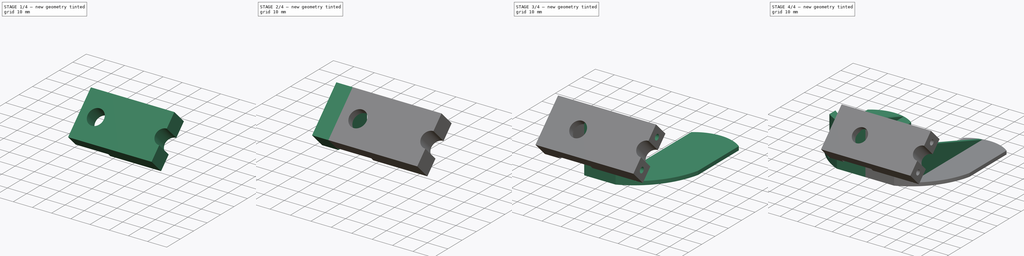
[diagram: build sequence overview — one tinted view per stage of 4, left to right]
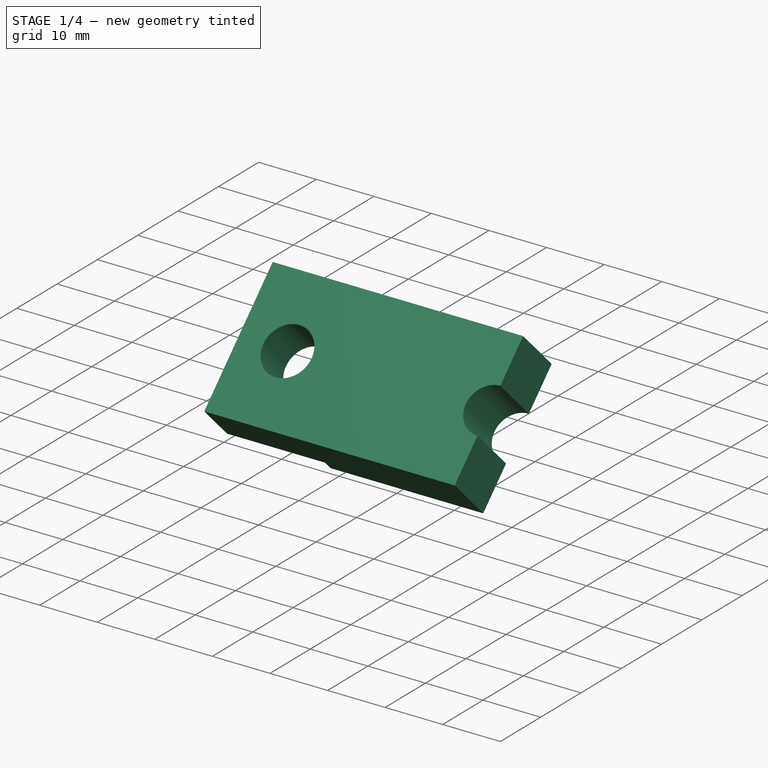
[diagram: stage 1 of 4 — iso view after this stage's code; geometry added in this stage tinted green]
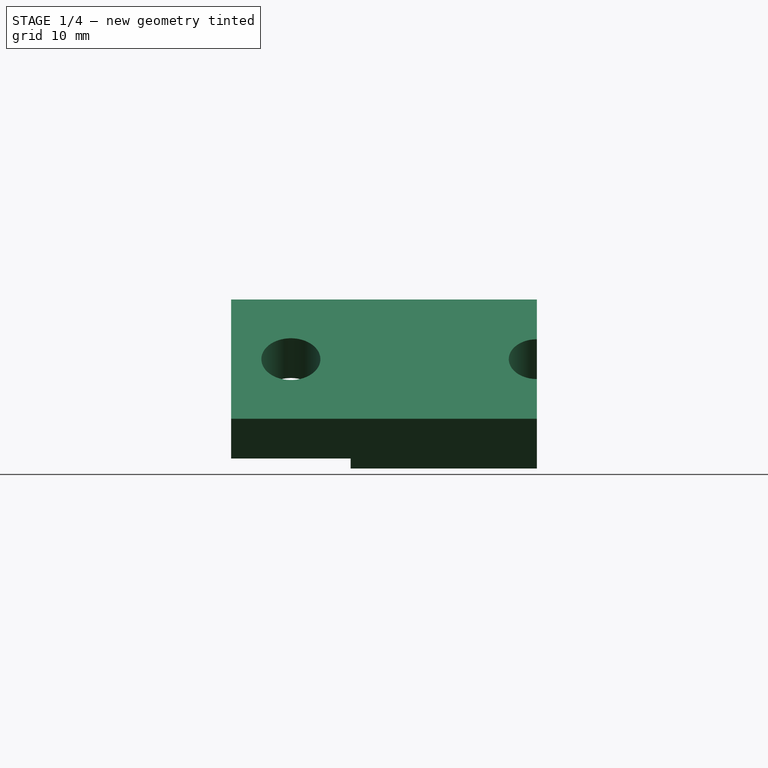
[diagram: stage 1 of 4 — front view after this stage's code; geometry added in this stage tinted green]
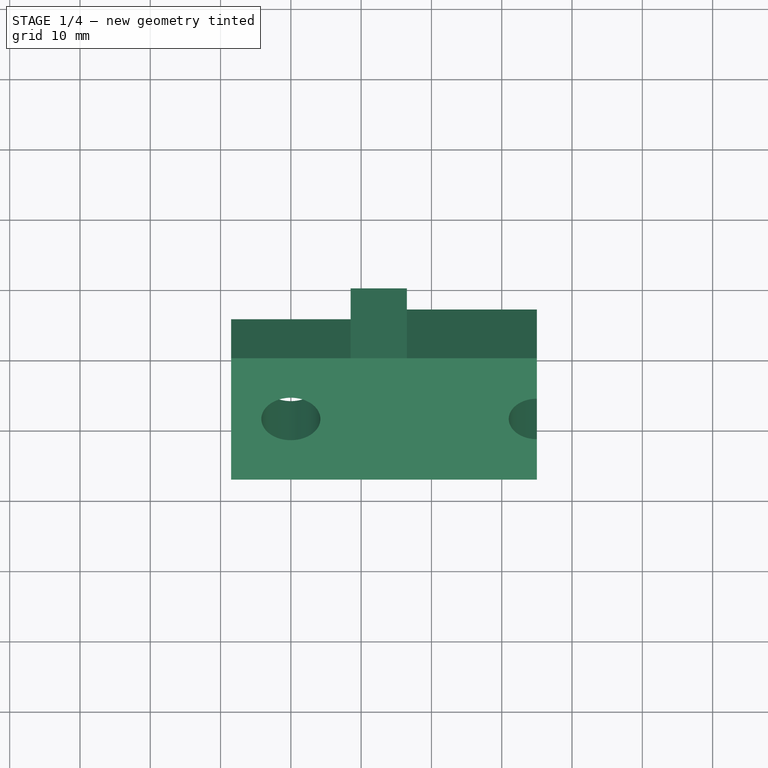
[diagram: stage 1 of 4 — top view after this stage's code; geometry added in this stage tinted green]
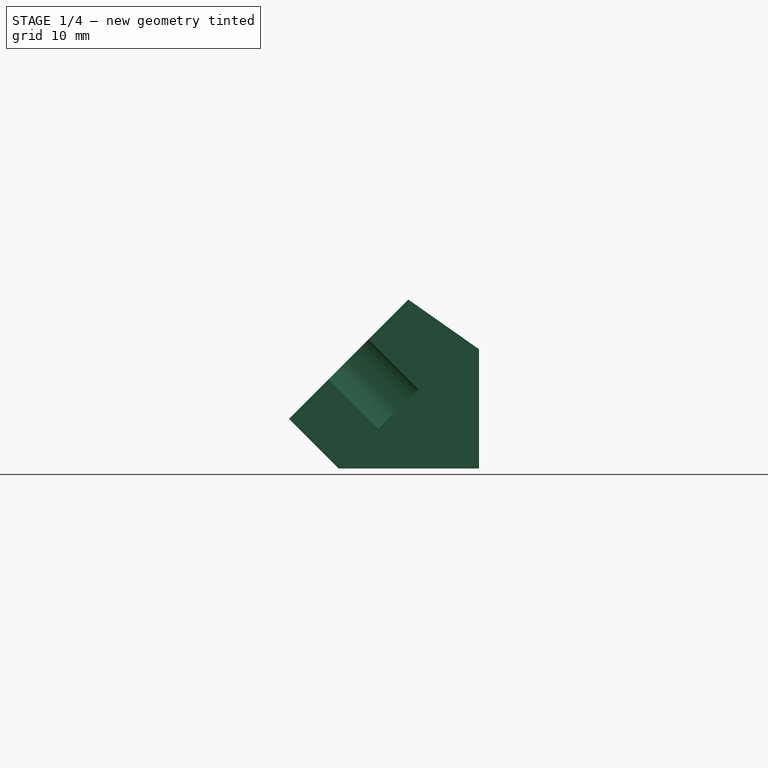
[diagram: stage 1 of 4 — right view after this stage's code; geometry added in this stage tinted green]
FCSTD DOCUMENT  (FreeCAD 0.19R24291 (Git))
Label: Ласты3
License: All rights reserved
LicenseURL: http://en.wikipedia.org/wiki/All_rights_reserved
objects: Sketcher::SketchObject×9, PartDesign::Pad×5, PartDesign::Pocket×5, PartDesign::Point×2, PartDesign::Mirrored×2, PartDesign::Body×2, PartDesign::Plane×1
note: 36 computed .brp shape members not serialized (recipe doc carries the construction recipe); baked Part::Feature solids carry a one-line shape summary decoded from their .brp

FEATURE [PartDesign::Body] Body
  Group = -> [Sketch,Pad,Sketch001,Pad001,DatumPlane,DatumPoint,Sketch002,DatumPoint001,Pad002,Sketch003,Pocket,Mirrored]
  Origin = -> Origin
  Tip = -> Mirrored
FEATURE [Sketcher::SketchObject] Sketch004
  AttachmentOffset = pos=(0,0,12.5) rot=(0,0,1;0rad)
  FullyConstrained = true
  MapMode = 5
  Placement = pos=(12.5,-2.8e-15,2.8e-15) rot=(0.57735,0.57735,0.57735;2.0944rad)
  Support = -> [YZ_Plane001]
  sketch-geometry (9):
    g0: LineSegment StartX=0 StartY=8 StartZ=0 EndX=-19.9706 EndY=8 EndZ=0
    g1: LineSegment StartX=-19.9706 StartY=8 StartZ=0 EndX=-27.0416 EndY=15.0711 EndZ=0
    g2: LineSegment StartX=-27.0416 StartY=15.0711 StartZ=0 EndX=-10.0711 EndY=32.0416 EndZ=0
    g3: LineSegment StartX=-10.0711 StartY=32.0416 StartZ=0 EndX=0 EndY=32.0416 EndZ=0
    g4: LineSegment StartX=0 StartY=32.0416 StartZ=0 EndX=0 EndY=8 EndZ=0
    g5: LineSegment StartX=-10.0711 StartY=32.0416 StartZ=0 EndX=-3 EndY=24.9706 EndZ=0
    g6: LineSegment StartX=-3 StartY=24.9706 StartZ=0 EndX=0 EndY=24.9706 EndZ=0
    g7: LineSegment StartX=-10.0711 StartY=32.0416 StartZ=0 EndX=0 EndY=24.9706 EndZ=0
    g8: LineSegment StartX=0 StartY=24.9706 StartZ=0 EndX=0 EndY=8 EndZ=0
  constraints (25):
    c: PointOnObject(g0,g-2)
    c: Horizontal(g0)
    c: Coincident(g1,g0)
    c: Distance(g-1,g0) = 8
    c: Angle(g0,g1) = 2.35619
    c: Distance(g1) = 10
    c: Coincident(g2,g1)
    c: Coincident(g3,g2)
    c: PointOnObject(g3,g-2)
    c: Horizontal(g3)
    c: Coincident(g4,g3)
    c: Coincident(g4,g0)
    c: Perpendicular(g2,g1)
    c: Distance(g2) = 24
    c: Coincident(g5,g2)
    c: Coincident(g6,g5)
    c: PointOnObject(g6,g4)
    c: Horizontal(g6)
    c: Perpendicular(g2,g5)
    c: Equal(g5,g1)
    c: Distance(g6) = 3
    c: Coincident(g7,g2)
    c: Coincident(g7,g6)
    c: Coincident(g8,g7)
    c: Coincident(g8,g0)
FEATURE [PartDesign::Pad] Pad003
  Direction = (1,1,1)
  Length = 8
  Length2 = 100
  Midplane = true
  Placement = pos=(0,0,0) rot=(0.57735,0.57735,0.57735;2.0944rad)
  Profile = -> Sketch004
  Type = 0
FEATURE [Sketcher::SketchObject] Sketch005
  ExternalGeometry = -> [Pad003]
  FullyConstrained = true
  MapMode = 5
  Placement = pos=(-1.52e-14,-21.0563,21.0563) rot=(0.357407,0.357407,-0.862856;1.71777rad)
  Support = -> [Pad003]
  sketch-geometry (13):
    g0: LineSegment StartX=-15.5355 StartY=8.5 StartZ=0 EndX=-15.5355 EndY=-8.5 EndZ=0
    g1: LineSegment StartX=-15.5355 StartY=-8.5 StartZ=0 EndX=8.46447 EndY=-8.5 EndZ=0
    g2: LineSegment StartX=8.46447 StartY=-8.5 StartZ=0 EndX=8.46447 EndY=8.5 EndZ=0
    g3: LineSegment StartX=8.46447 StartY=8.5 StartZ=0 EndX=-15.5355 EndY=8.5 EndZ=0
    g4: Circle CenterX=-3.53553 CenterY=0 CenterZ=0 NormalX=0 NormalY=0 NormalZ=1 AngleXU=0 Radius=4.2
    g5: LineSegment StartX=-15.5355 StartY=8.5 StartZ=0 EndX=-3.53553 EndY=0 EndZ=0
    g6: LineSegment StartX=-3.53553 StartY=0 StartZ=0 EndX=8.46447 EndY=-8.5 EndZ=0
    g7: LineSegment StartX=-15.5355 StartY=16.5 StartZ=0 EndX=8.46447 EndY=16.5 EndZ=0
    g8: LineSegment StartX=8.46447 StartY=16.5 StartZ=0 EndX=8.46447 EndY=35 EndZ=0
    g9: LineSegment StartX=8.46447 StartY=35 StartZ=0 EndX=0.464466 EndY=35 EndZ=0
    g10: LineSegment StartX=-15.5355 StartY=35 StartZ=0 EndX=-15.5355 EndY=16.5 EndZ=0
    g11: ArcOfCircle CenterX=-3.53553 CenterY=35 CenterZ=0 NormalX=0 NormalY=0 NormalZ=1 AngleXU=0 Radius=4 StartAngle=3.14159 EndAngle=6.28319
    g12: LineSegment StartX=-7.53553 StartY=35 StartZ=0 EndX=-15.5355 EndY=35 EndZ=0
  constraints (33):
    c: Coincident(g0,g-3)
    c: Vertical(g0)
    c: Distance(g0) = 17
    c: Coincident(g0,g1)
    c: Horizontal(g1)
    c: Coincident(g1,g2)
    c: Coincident(g2,g-4)
    c: Vertical(g2)
    c: Coincident(g2,g3)
    c: Coincident(g3,g0)
    c: PointOnObject(g4,g-1)
    c: Coincident(g5,g0)
    c: Coincident(g5,g4)
    c: Coincident(g6,g4)
    c: Coincident(g6,g1)
    c: Equal(g6,g5)
    c: Diameter(g4) = 8.4
    c: Coincident(g7,g8)
    c: Coincident(g8,g9)
    c: Coincident(g12,g10)
    c: Coincident(g10,g7)
    c: Horizontal(g9)
    c: Vertical(g8)
    c: Vertical(g10)
    c: Coincident(g7,g-3)
    c: Coincident(g7,g-4)
    c: PointOnObject(g11,g9)
    c: Coincident(g9,g11)
    c: Coincident(g12,g11)
    c: Tangent(g9,g12)
    c: Vertical(g4,g11)
    c: Diameter(g11) = 8
    c: Distance(g4,g11) = 35
FEATURE [PartDesign::Pad] Pad004
  BaseFeature = -> Pad003
  Direction = (1,1,1)
  Length = 10
  Length2 = 100
  Placement = pos=(0,0,0) rot=(0.57735,0.57735,0.57735;2.0944rad)
  Profile = -> Sketch005
  Reversed = true
  Type = 0
FEATURE [PartDesign::Pocket] Pocket001
  BaseFeature = -> Pad004
  Length = 2
  Length2 = 100
  Placement = pos=(0,0,0) rot=(0.57735,0.57735,0.57735;2.0944rad)
  Profile = -> Pad004 [Face11]
  Type = 0
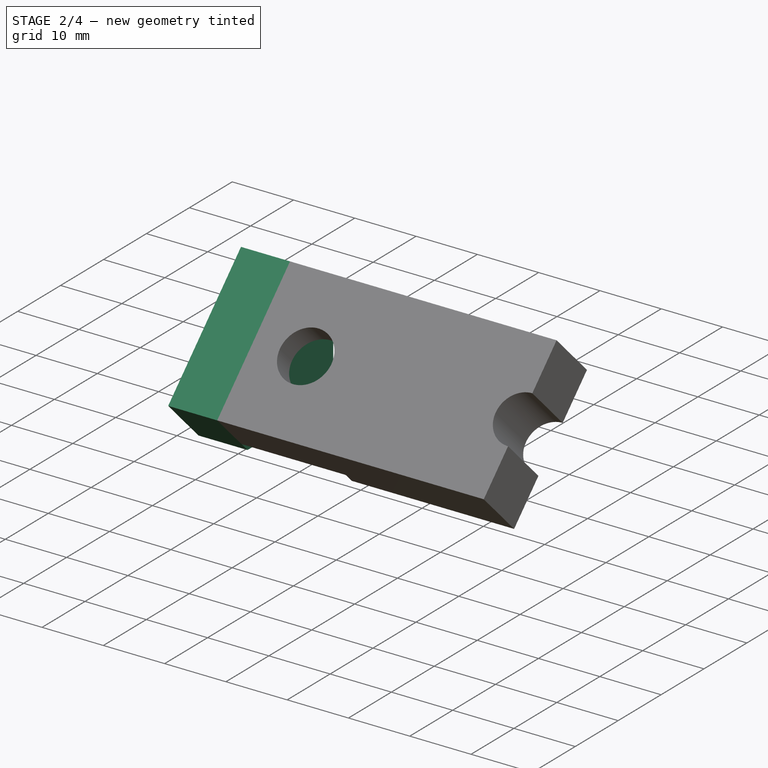
[diagram: stage 2 of 4 — iso view after this stage's code; geometry added in this stage tinted green]
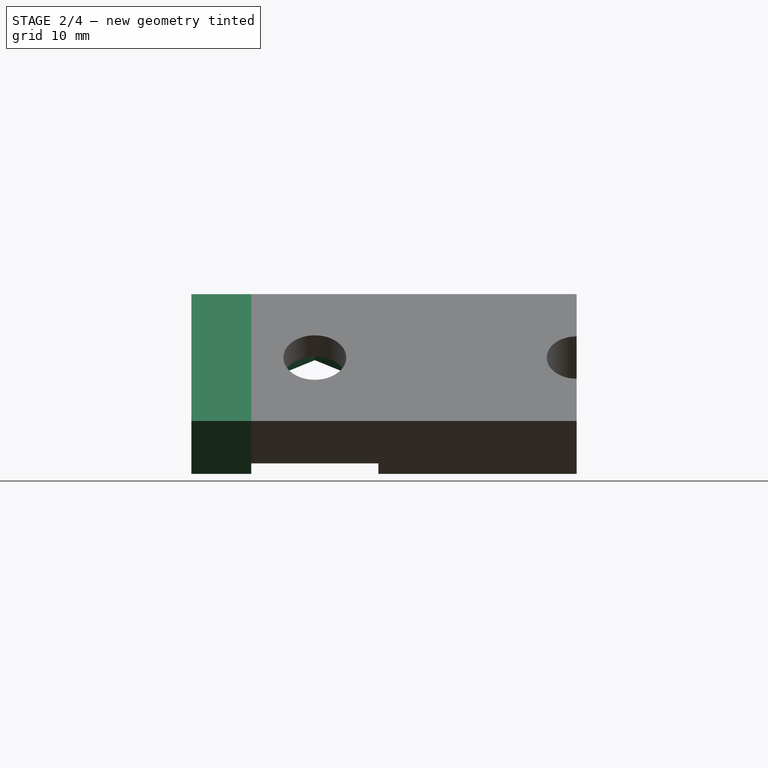
[diagram: stage 2 of 4 — front view after this stage's code; geometry added in this stage tinted green]
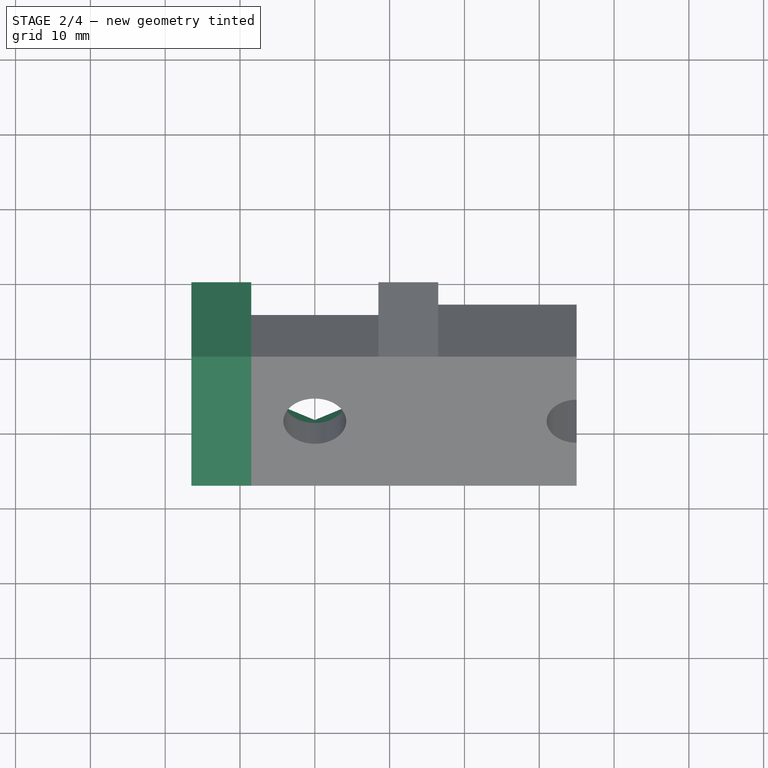
[diagram: stage 2 of 4 — top view after this stage's code; geometry added in this stage tinted green]
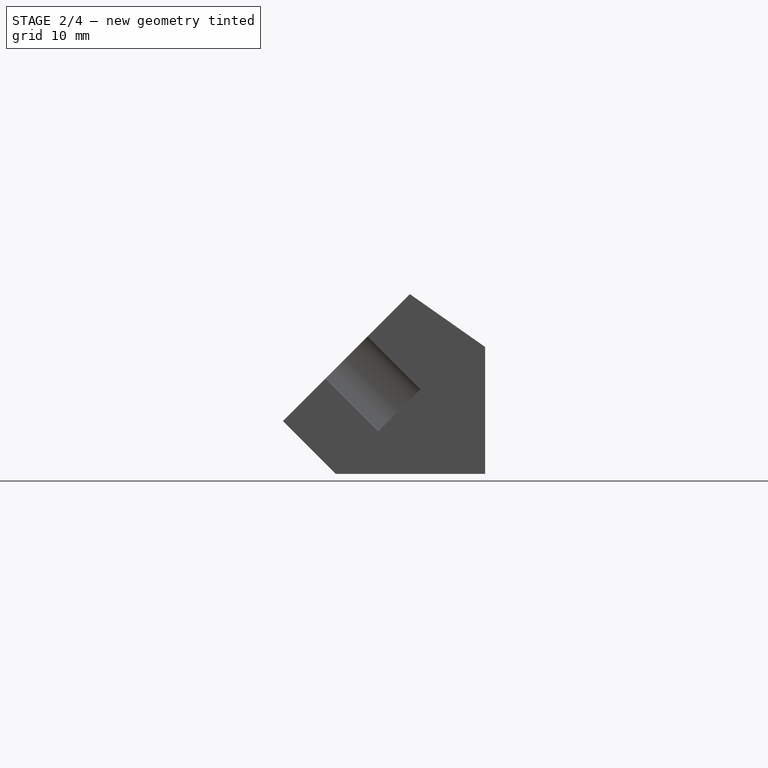
[diagram: stage 2 of 4 — right view after this stage's code; geometry added in this stage tinted green]
FEATURE [Sketcher::SketchObject] Sketch006
  FullyConstrained = true
  MapMode = 5
  Placement = pos=(0,-1.8e-14,0) rot=(0.57735,0.57735,0.57735;4.18879rad)
  sketch-geometry (1):
    g0: Circle CenterX=16.5 CenterY=12.5 CenterZ=0 NormalX=0 NormalY=0 NormalZ=1 AngleXU=0 Radius=1.5
  constraints (3):
    c: Diameter(g0) = 3
    c: DistanceX(g0) = 16.5
    c: DistanceY(g0) = 12.5
FEATURE [PartDesign::Pocket] Pocket002
  BaseFeature = -> Pocket001
  Length = 10
  Length2 = 100
  Placement = pos=(0,0,0) rot=(0.57735,0.57735,0.57735;2.0944rad)
  Profile = -> Sketch006
  Type = 0
FEATURE [PartDesign::Mirrored] Mirrored001
  BaseFeature = -> Pocket002
  MirrorPlane = -> YZ_Plane001
  Originals = -> [Pad003,Pocket002]
  Placement = pos=(0,0,0) rot=(0.57735,0.57735,0.57735;2.0944rad)
FEATURE [Sketcher::SketchObject] Sketch007
  ExternalGeometry = -> [Mirrored001]
  FullyConstrained = true
  MapMode = 5
  Placement = pos=(-2.56e-14,-15.3995,15.3995) rot=(0.678598,0.678598,0.281085;3.68962rad)
  Support = -> [Mirrored001]
  sketch-geometry (7):
    g0: LineSegment StartX=7.28831 StartY=6.5 StartZ=0 EndX=-0.217243 EndY=6.5 EndZ=0
    g1: LineSegment StartX=-0.217243 StartY=6.5 StartZ=0 EndX=-3.97002 EndY=0 EndZ=0
    g2: LineSegment StartX=-3.97002 StartY=0 StartZ=0 EndX=-0.217243 EndY=-6.5 EndZ=0
    g3: LineSegment StartX=-0.217243 StartY=-6.5 StartZ=0 EndX=7.28831 EndY=-6.5 EndZ=0
    g4: LineSegment StartX=7.28831 StartY=-6.5 StartZ=0 EndX=11.0411 EndY=-9e-16 EndZ=0
    g5: LineSegment StartX=11.0411 StartY=-9e-16 StartZ=0 EndX=7.28831 EndY=6.5 EndZ=0
    g6: Circle CenterX=3.53553 CenterY=-1e-16 CenterZ=0 NormalX=0 NormalY=0 NormalZ=1 AngleXU=0 Radius=7.50555
  constraints (16):
    c: Coincident(g0,g1)
    c: Coincident(g1,g2)
    c: Coincident(g2,g3)
    c: Coincident(g3,g4)
    c: Coincident(g4,g5)
    c: Coincident(g5,g0)
    c: Equal(g0, g1-g5) x5
    c: PointOnObject(g0,g6)
    c: PointOnObject(g1,g6)
    c: PointOnObject(g2,g6)
    c: PointOnObject(g3,g6)
    c: PointOnObject(g4,g6)
    c: PointOnObject(g5,g6)
    c: Coincident(g6,g-3)
    c: Horizontal(g0)
    c: Distance(g3,g0) = 13
FEATURE [PartDesign::Pocket] Pocket003
  BaseFeature = -> Mirrored001
  Length = 4
  Length2 = 100
  Placement = pos=(0,0,0) rot=(0.57735,0.57735,0.57735;2.0944rad)
  Profile = -> Sketch007
  Type = 0
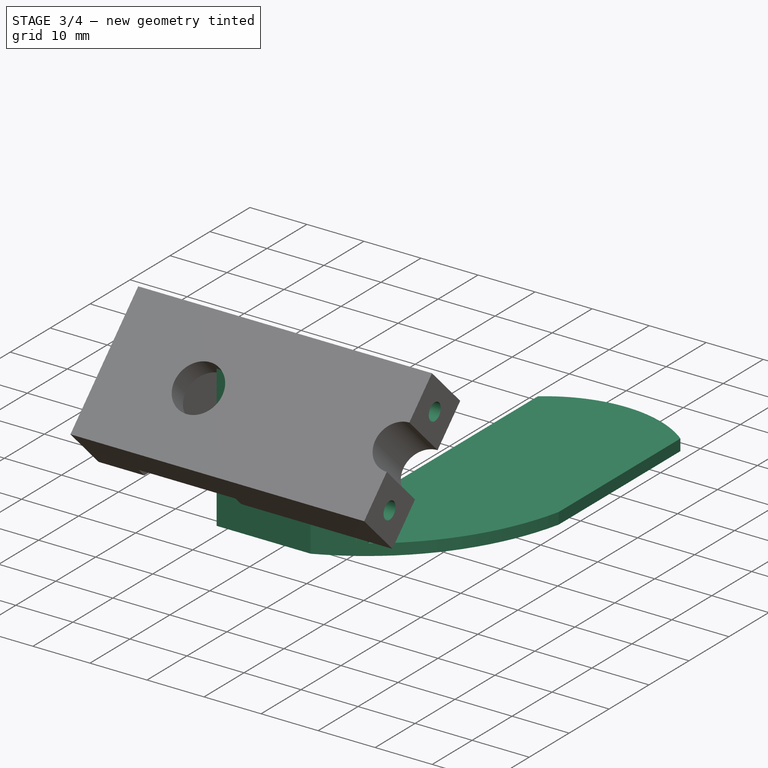
[diagram: stage 3 of 4 — iso view after this stage's code; geometry added in this stage tinted green]
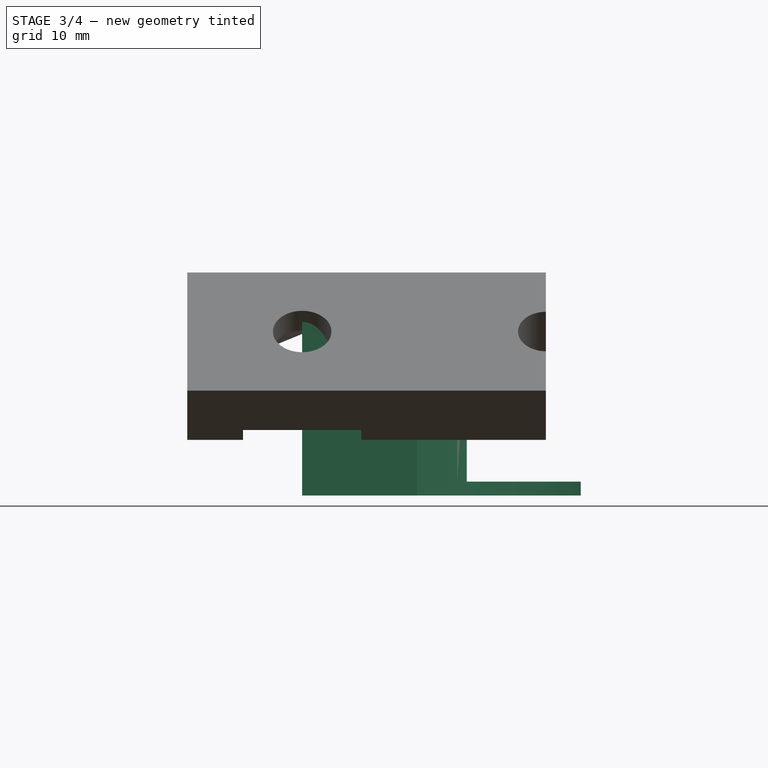
[diagram: stage 3 of 4 — front view after this stage's code; geometry added in this stage tinted green]
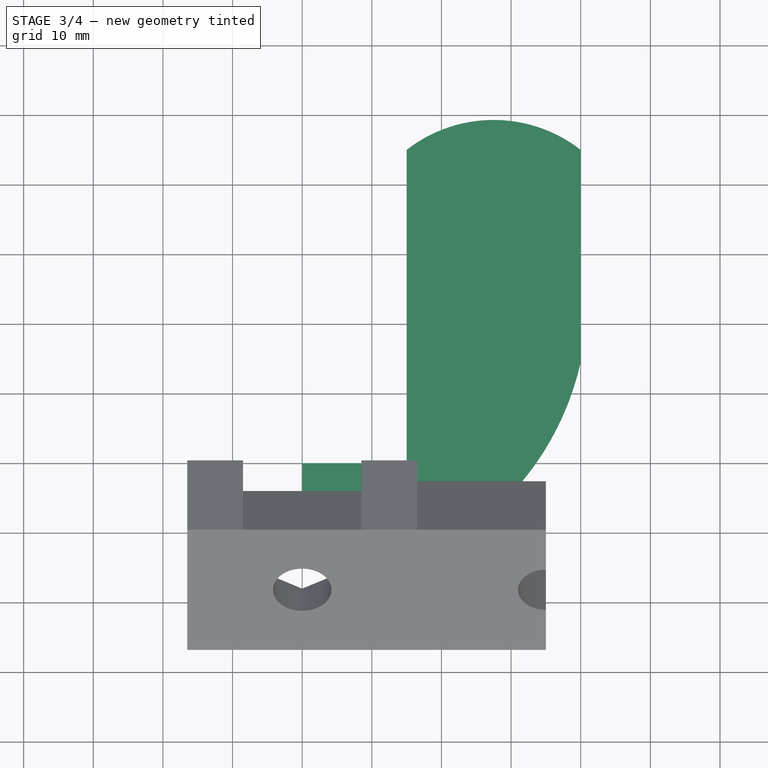
[diagram: stage 3 of 4 — top view after this stage's code; geometry added in this stage tinted green]
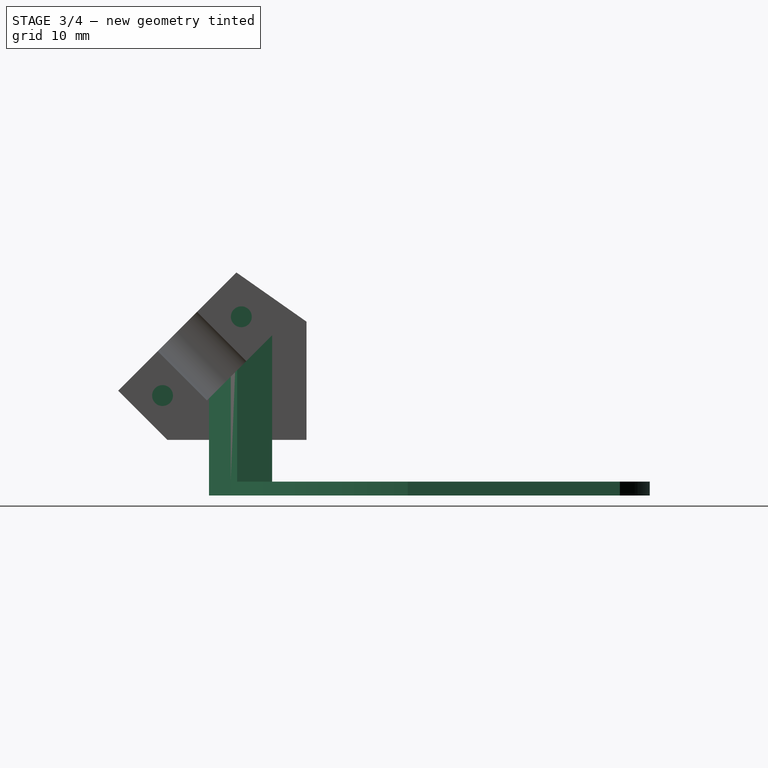
[diagram: stage 3 of 4 — right view after this stage's code; geometry added in this stage tinted green]
FEATURE [Sketcher::SketchObject] Sketch
  FullyConstrained = false
  MapMode = 5
  Support = -> [XY_Plane]
  sketch-geometry (7):
    g0: LineSegment StartX=0 StartY=0 StartZ=0 EndX=15 EndY=0 EndZ=0
    g1: LineSegment StartX=15 StartY=0 StartZ=0 EndX=15 EndY=45 EndZ=0
    g2: LineSegment StartX=0 StartY=0 StartZ=0 EndX=0 EndY=-14 EndZ=0
    g3: LineSegment StartX=0 StartY=-14 StartZ=0 EndX=16.5 EndY=-14 EndZ=0
    g4: LineSegment StartX=40 StartY=45 StartZ=0 EndX=40 EndY=14.5333 EndZ=0
    g5: ArcOfCircle CenterX=0 CenterY=23.5333 CenterZ=0 NormalX=0 NormalY=0 NormalZ=1 AngleXU=0 Radius=41 StartAngle=5.12657 EndAngle=6.06187
    g6: ArcOfCircle CenterX=27.5 CenterY=28.9856 CenterZ=0 NormalX=0 NormalY=0 NormalZ=1 AngleXU=0 Radius=20.3153 StartAngle=0.90803 EndAngle=2.23356
  constraints (21):
    c: Coincident(g-1,g0)
    c: PointOnObject(g0,g-1)
    c: Coincident(g0,g1)
    c: Vertical(g1)
    c: Coincident(g0,g2)
    c: PointOnObject(g2,g-2)
    c: Coincident(g2,g3)
    c: Horizontal(g3)
    c: Vertical(g4)
    c: PointOnObject(g5,g-2)
    c: Coincident(g5,g3)
    c: Coincident(g5,g4)
    c: Diameter(g5) = 82
    c: Distance(g2) = 14
    c: Distance(g3) = 16.5
    c: DistanceX(g1,g4) = 25
    c: Distance(g1,g-2) = 15
    c: Horizontal(g4,g1)
    c: Distance(g1) = 45
    c: Coincident(g6,g4)
    c: Coincident(g6,g1)
FEATURE [PartDesign::Pad] Pad
  Direction = (1,1,1)
  Length = 2
  Length2 = 100
  Profile = -> Sketch
  Type = 0
FEATURE [Sketcher::SketchObject] Sketch001
  FullyConstrained = true
  MapMode = 5
  Support = -> [XY_Plane]
  expr: Constraints[8] = Sketch.Constraints[13]
  expr: Constraints[9] = Sketch.Constraints[14]
  expr: Constraints[7] = Sketch.Constraints[12]
  sketch-geometry (7):
    g0: LineSegment StartX=0 StartY=-10 StartZ=0 EndX=15.637 EndY=-10 EndZ=0
    g1: LineSegment StartX=0 StartY=0 StartZ=0 EndX=0 EndY=-14 EndZ=0
    g2: LineSegment StartX=0 StartY=-14 StartZ=0 EndX=16.5 EndY=-14 EndZ=0
    g3: ArcOfCircle CenterX=0 CenterY=23.5333 CenterZ=0 NormalX=0 NormalY=0 NormalZ=1 AngleXU=0 Radius=41 StartAngle=5.12657 EndAngle=5.32684
    g4: ArcOfCircle CenterX=0 CenterY=23.5333 CenterZ=0 NormalX=0 NormalY=0 NormalZ=1 AngleXU=0 Radius=37 StartAngle=5.14873 EndAngle=5.40538
    g5: LineSegment StartX=23.637 StartY=-9.96729 StartZ=0 EndX=23.637 EndY=-4.93229 EndZ=0
    g6: LineSegment StartX=0 StartY=-10 StartZ=0 EndX=0 EndY=-14 EndZ=0
  constraints (21):
    c: PointOnObject(g0,g-2)
    c: Horizontal(g0)
    c: PointOnObject(g1,g-2)
    c: Coincident(g1,g2)
    c: Horizontal(g2)
    c: PointOnObject(g3,g-2)
    c: Coincident(g3,g2)
    c: Diameter(g3) = 82
    c: Distance(g1) = 14
    c: Distance(g2) = 16.5
    c: Coincident(g1,g-1)
    c: Distance(g0,g-1) = 10
    c: Coincident(g4,g3)
    c: Coincident(g4,g0)
    c: Diameter(g4) = 74
    c: Coincident(g5,g3)
    c: Coincident(g5,g4)
    c: Vertical(g5)
    c: Distance(g0,g5) = 8
    c: Coincident(g6,g0)
    c: Coincident(g6,g2)
FEATURE [PartDesign::Pad] Pad001
  BaseFeature = -> Pad
  Direction = (1,1,1)
  Length = 25
  Length2 = 100
  Profile = -> Sketch001
  Type = 0
FEATURE [Sketcher::SketchObject] Sketch008
  ExternalGeometry = -> [Pocket003]
  FullyConstrained = true
  MapMode = 5
  Placement = pos=(35,-2.74e-14,4e-14) rot=(0.57735,0.57735,0.57735;2.0944rad)
  Support = -> [Pocket003]
  sketch-geometry (6):
    g0: Circle CenterX=-20.6777 CenterY=14.364 CenterZ=0 NormalX=0 NormalY=0 NormalZ=1 AngleXU=0 Radius=1.5
    g1: Circle CenterX=-9.36396 CenterY=25.6777 CenterZ=0 NormalX=0 NormalY=0 NormalZ=1 AngleXU=0 Radius=1.5
    g2: LineSegment StartX=-10.0711 StartY=32.0416 StartZ=0 EndX=-9.36396 EndY=25.6777 EndZ=0
    g3: LineSegment StartX=-9.36396 StartY=25.6777 StartZ=0 EndX=-3 EndY=24.9706 EndZ=0
    g4: LineSegment StartX=-27.0416 StartY=15.0711 StartZ=0 EndX=-20.6777 EndY=14.364 EndZ=0
    g5: LineSegment StartX=-20.6777 StartY=14.364 StartZ=0 EndX=-19.9706 EndY=8 EndZ=0
  constraints (14):
    c: Distance(g0,g1) = 16
    c: Coincident(g2,g-3)
    c: Coincident(g2,g1)
    c: Coincident(g3,g1)
    c: Coincident(g3,g-3)
    c: Coincident(g4,g-4)
    c: Coincident(g4,g0)
    c: Coincident(g5,g0)
    c: Coincident(g5,g-4)
    c: Equal(g5,g4)
    c: Equal(g3,g2)
    c: Equal(g1,g0)
    c: Diameter(g0) = 3
    c: Equal(g3,g5)
FEATURE [PartDesign::Pocket] Pocket004
  BaseFeature = -> Pocket003
  Length = 10
  Length2 = 100
  Placement = pos=(0,0,0) rot=(0.57735,0.57735,0.57735;2.0944rad)
  Profile = -> Sketch008
  Type = 0
FEATURE [PartDesign::Body] Body001
  Group = -> [Sketch004,Pad003,Sketch005,Pad004,Pocket001,Sketch006,Pocket002,Mirrored001,Sketch007,Pocket003,Sketch008,Pocket004]
  Origin = -> Origin001
  Placement = pos=(0,-14,0) rot=(0,0,1;0rad)
  Tip = -> Pocket004
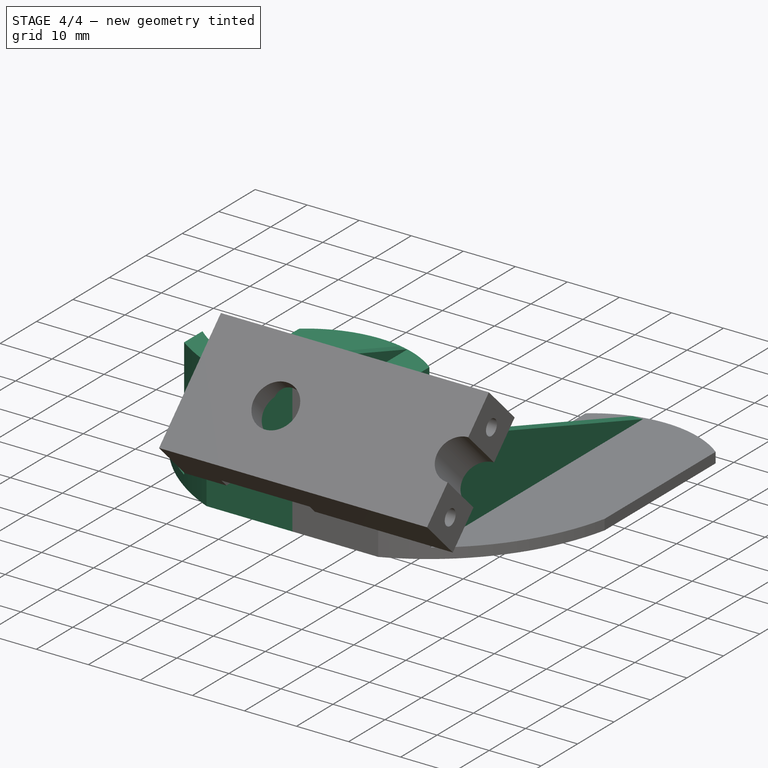
[diagram: stage 4 of 4 — iso view after this stage's code; geometry added in this stage tinted green]
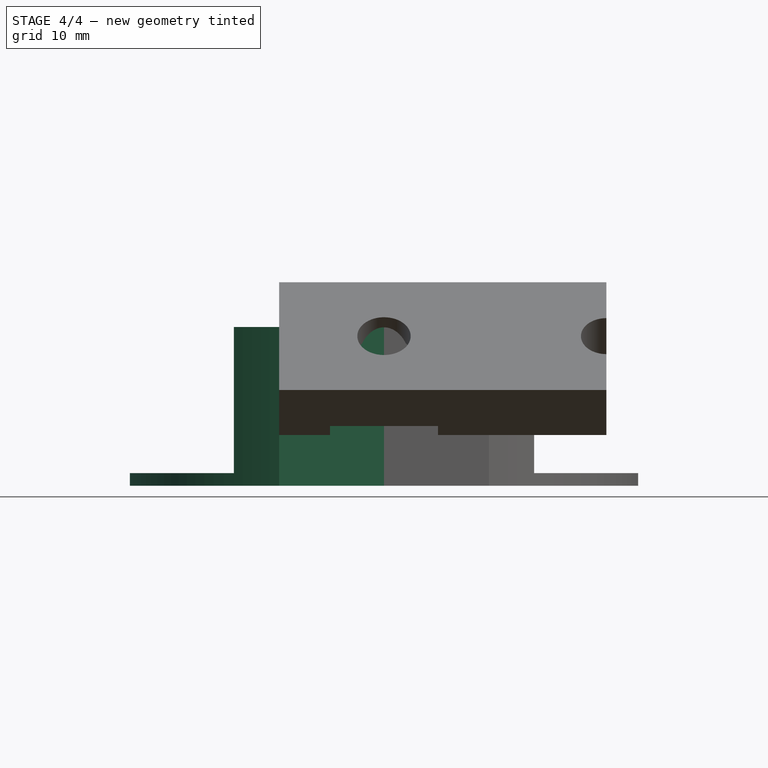
[diagram: stage 4 of 4 — front view after this stage's code; geometry added in this stage tinted green]
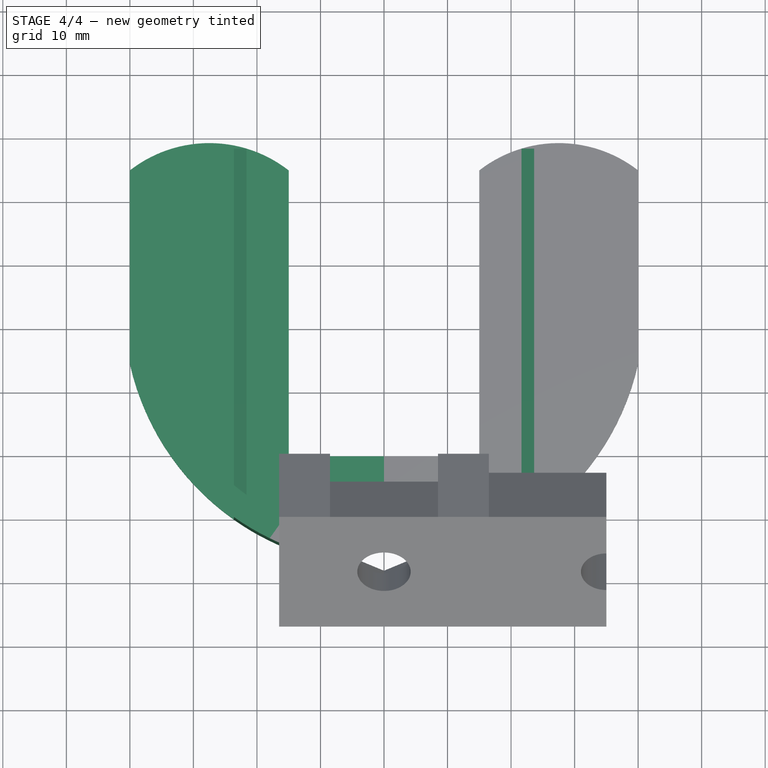
[diagram: stage 4 of 4 — top view after this stage's code; geometry added in this stage tinted green]
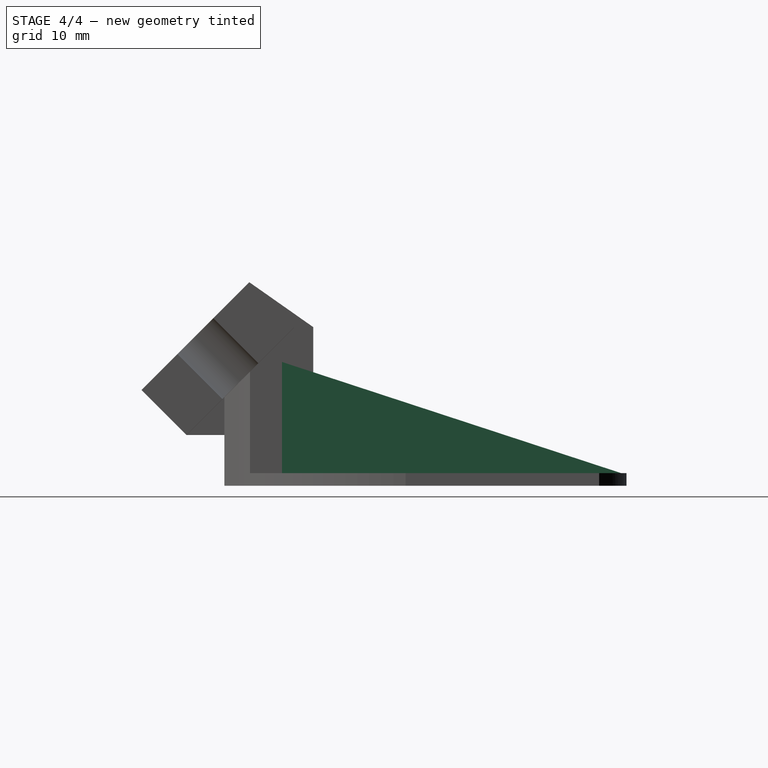
[diagram: stage 4 of 4 — right view after this stage's code; geometry added in this stage tinted green]
FEATURE [PartDesign::Plane] DatumPlane
  AttachmentOffset = pos=(0,0,-2) rot=(0,0,1;0rad)
  Length = 86.4911
  MapMode = 5
  Placement = pos=(21.637,0,0) rot=(0.57735,0.57735,0.57735;2.0944rad)
  ResizeMode = 0
  Support = -> [Pad001]
  Width = 62.1902
FEATURE [PartDesign::Point] DatumPoint
  AttacherType = Attacher::AttachEnginePoint
  MapMode = 40
  Placement = pos=(21.637,-6.48066,25) rot=(0,0,1;0rad)
  Support = -> [DatumPlane,Pad001]
FEATURE [PartDesign::Point] DatumPoint001
  AttacherType = Attacher::AttachEnginePoint
  MapMode = 40
  Placement = pos=(21.637,48.4365,2) rot=(0,0,1;0rad)
  Support = -> [DatumPlane,Pad001]
FEATURE [Sketcher::SketchObject] Sketch002
  AttachmentOffset = pos=(0,0,21.637) rot=(0,0,1;0rad)
  ExternalGeometry = -> [DatumPoint001,DatumPoint]
  FullyConstrained = true
  MapMode = 5
  Placement = pos=(21.637,-4.8e-15,4.8e-15) rot=(0.57735,0.57735,0.57735;2.0944rad)
  Support = -> [YZ_Plane]
  expr: .AttachmentOffset.Base.z = DatumPlane.Placement.Base.x
  sketch-geometry (3):
    g0: LineSegment StartX=-6.48066 StartY=20 StartZ=0 EndX=48.4365 EndY=2 EndZ=0
    g1: LineSegment StartX=48.4365 StartY=2 StartZ=0 EndX=-6.48066 EndY=2 EndZ=0
    g2: LineSegment StartX=-6.48066 StartY=2 StartZ=0 EndX=-6.48066 EndY=20 EndZ=0
  constraints (8):
    c: Coincident(g0,g-3)
    c: Coincident(g0,g1)
    c: Horizontal(g1)
    c: Coincident(g1,g2)
    c: Coincident(g2,g0)
    c: Vertical(g2)
    c: Vertical(g0,g-4)
    c: DistanceY(g0,g-4) = 5
FEATURE [PartDesign::Pad] Pad002
  BaseFeature = -> Pad001
  Direction = (1,1,1)
  Length = 2
  Length2 = 100
  Profile = -> Sketch002
  Type = 0
FEATURE [Sketcher::SketchObject] Sketch003
  FullyConstrained = true
  MapMode = 5
  Placement = pos=(0,-10,0) rot=(0,0.707107,0.707107;3.14159rad)
  Support = -> [Pad002]
  sketch-geometry (4):
    g0: LineSegment StartX=0 StartY=0 StartZ=0 EndX=0 EndY=8 EndZ=0
    g1: LineSegment StartX=0 StartY=8 StartZ=0 EndX=0 EndY=16.5 EndZ=0
    g2: LineSegment StartX=0 StartY=16.5 StartZ=0 EndX=0 EndY=25 EndZ=0
    g3: Circle CenterX=-12.5 CenterY=16.5 CenterZ=0 NormalX=0 NormalY=0 NormalZ=1 AngleXU=0 Radius=2
  constraints (12):
    c: Coincident(g0,g-1)
    c: Vertical(g0)
    c: Distance(g0) = 8
    c: Coincident(g1,g0)
    c: Vertical(g1)
    c: Coincident(g2,g1)
    c: PointOnObject(g2,g-2)
    c: Distance(g0,g2) = 17
    c: Equal(g1,g2)
    c: Distance(g1,g3) = 12.5
    c: Horizontal(g1,g3)
    c: Diameter(g3) = 4
FEATURE [PartDesign::Pocket] Pocket
  BaseFeature = -> Pad002
  Length = 5
  Length2 = 100
  Profile = -> Sketch003
  Type = 0
FEATURE [PartDesign::Mirrored] Mirrored
  BaseFeature = -> Pocket
  MirrorPlane = -> Sketch [V_Axis]
  Originals = -> [Pad,Pad001,Pad002,Pocket]
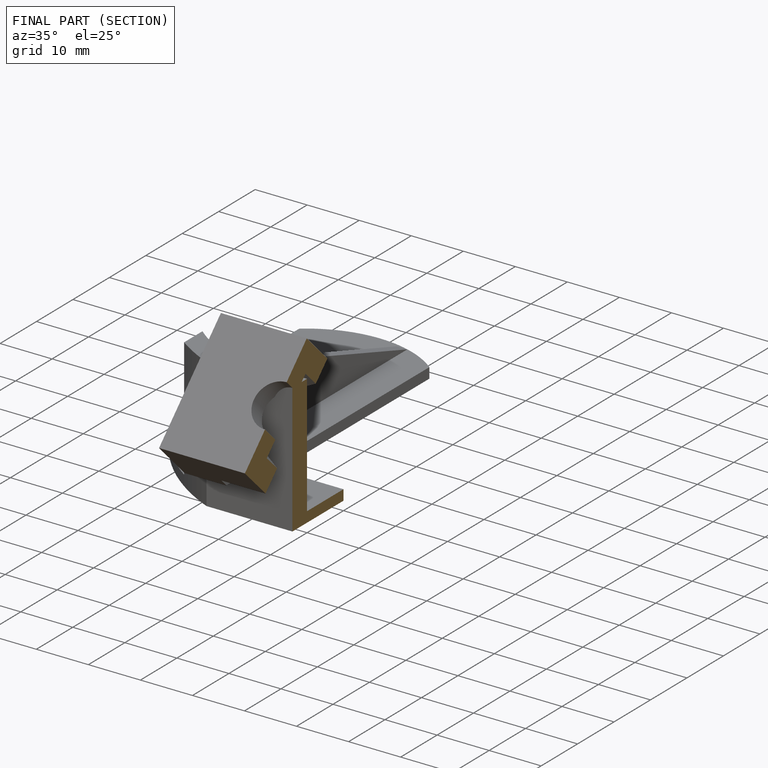
[diagram: finished part — half-section view (interior)]
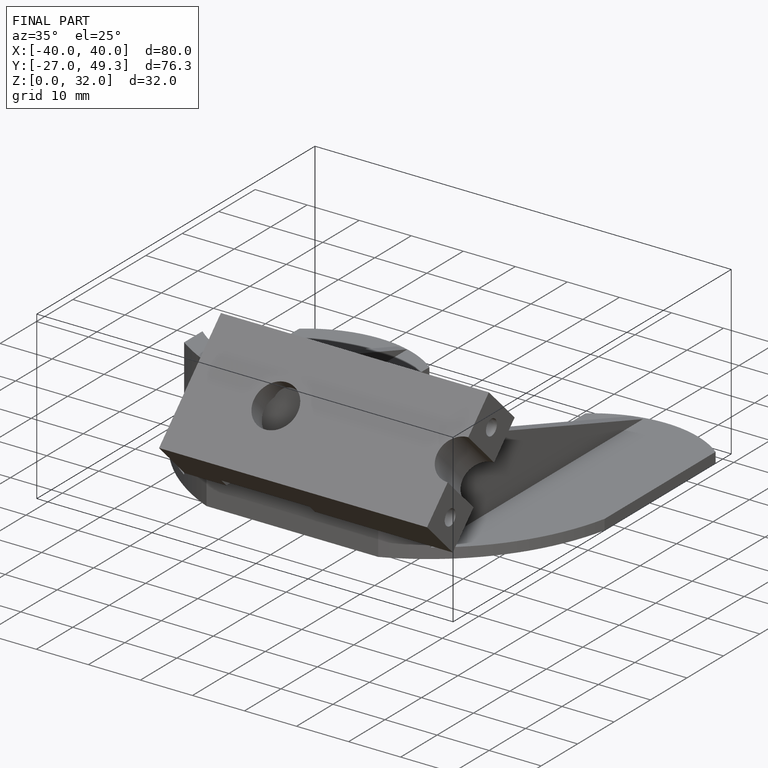
[diagram: finished part — iso view with bounding-box wireframe]
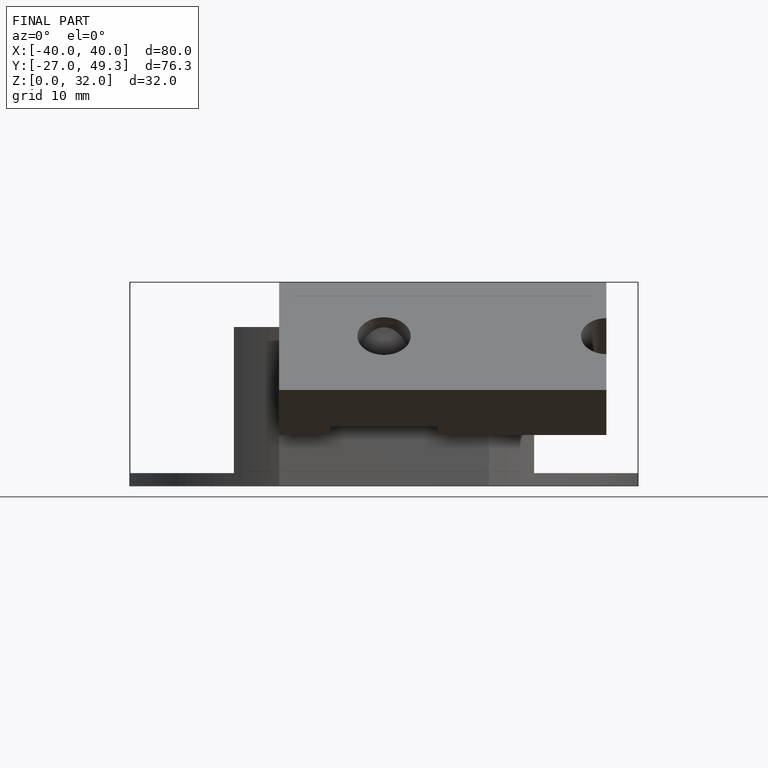
[diagram: finished part — front view with bounding-box wireframe]
